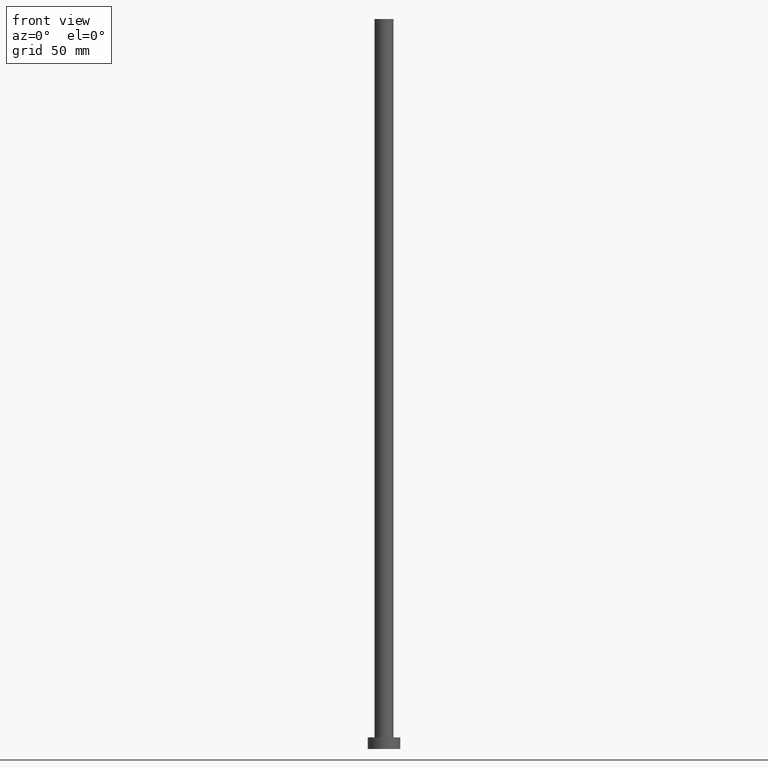
[diagram: clean part render]
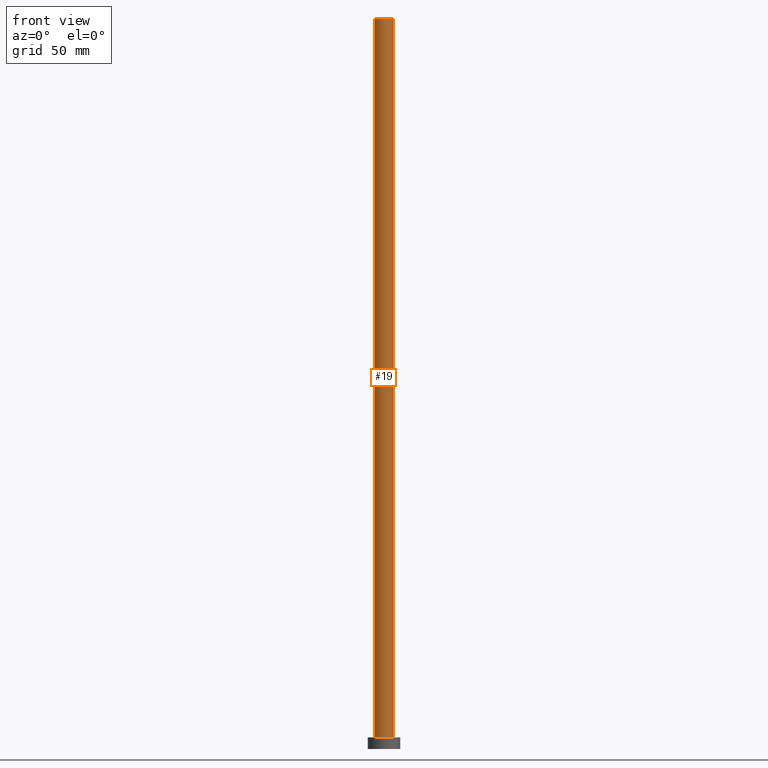
[diagram: same view with one face highlighted and labeled with its STEP entity id]
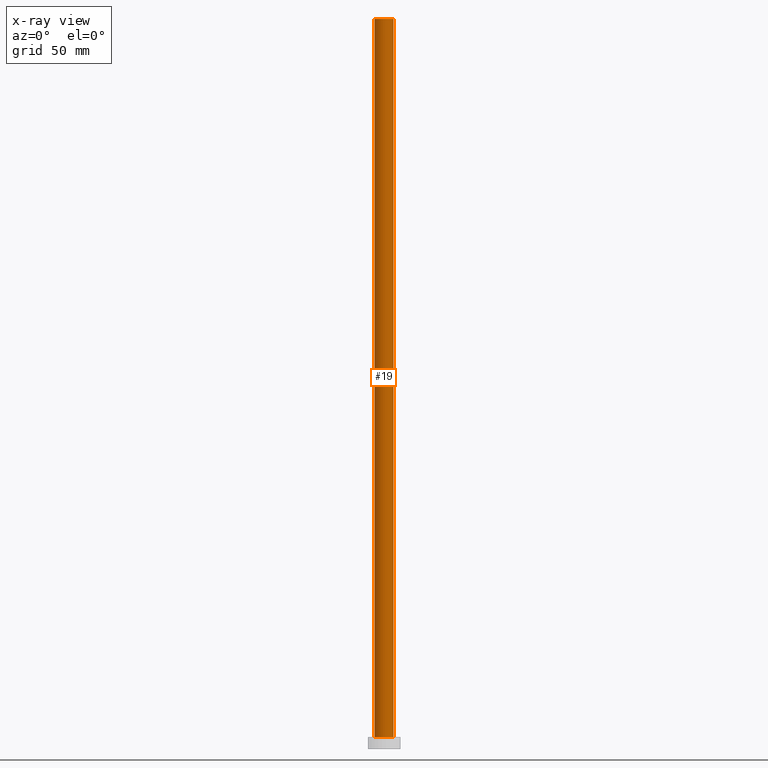
[diagram: x-ray of the same camera — body ghosted, the highlighted face saturated]
A machine part, front view. The second image highlights one B-rep face of the part: STEP entity #19.
The next image is the same camera in x-ray: the body ghosted, the highlighted face saturated — about 0% of this face is hidden behind the body in this view.
In plain terms, the highlighted cylindrical surface (edge-blend (fillet) strip) has radius 4.1 mm, axis along (-0, -0, -1).
Its self-contained STEP definition (entity closure, byte-faithful):
#3 = EDGE_CURVE ( 'NONE', #99, #74, #75, .T. ) ;
#10 = VERTEX_POINT ( 'NONE', #194 ) ;
#14 = FACE_OUTER_BOUND ( 'NONE', #253, .T. ) ;
#19 = ADVANCED_FACE ( 'NONE', ( #14 ), #32, .T. ) ;
#21 = CARTESIAN_POINT ( 'NONE',  ( 4.099999999999999645, 5.021051876504147385E-16, 5.000000000000000000 ) ) ;
#22 = CIRCLE ( 'NONE', #77, 4.099999999999999645 ) ;
#23 = DIRECTION ( 'NONE',  ( 1.000000000000000000, 0.000000000000000000, 0.000000000000000000 ) ) ;
#32 = CYLINDRICAL_SURFACE ( 'NONE', #204, 4.099999999999999645 ) ;
#36 = EDGE_CURVE ( 'NONE', #67, #99, #22, .T. ) ;
#42 = LINE ( 'NONE', #172, #187 ) ;
#46 = AXIS2_PLACEMENT_3D ( 'NONE', #102, #155, #23 ) ;
#57 = DIRECTION ( 'NONE',  ( 1.000000000000000000, 0.000000000000000000, 0.000000000000000000 ) ) ;
#64 = ORIENTED_EDGE ( 'NONE', *, *, #3, .F. ) ;
#67 = VERTEX_POINT ( 'NONE', #135 ) ;
#72 = DIRECTION ( 'NONE',  ( 0.000000000000000000, 0.000000000000000000, 1.000000000000000000 ) ) ;
#74 = VERTEX_POINT ( 'NONE', #21 ) ;
#75 = LINE ( 'NONE', #148, #213 ) ;
#77 = AXIS2_PLACEMENT_3D ( 'NONE', #255, #72, #57 ) ;
#79 = CIRCLE ( 'NONE', #46, 4.099999999999999645 ) ;
#80 = DIRECTION ( 'NONE',  ( -0.000000000000000000, -0.000000000000000000, -1.000000000000000000 ) ) ;
#98 = CARTESIAN_POINT ( 'NONE',  ( 4.099999999999999645, 5.021051876504147385E-16, 315.0000000000000000 ) ) ;
#99 = VERTEX_POINT ( 'NONE', #98 ) ;
#102 = CARTESIAN_POINT ( 'NONE',  ( 0.000000000000000000, 0.000000000000000000, 5.000000000000000000 ) ) ;
#125 = EDGE_CURVE ( 'NONE', #10, #74, #79, .T. ) ;
#134 = EDGE_CURVE ( 'NONE', #67, #10, #42, .T. ) ;
#135 = CARTESIAN_POINT ( 'NONE',  ( -4.099999999999999645, 0.000000000000000000, 315.0000000000000000 ) ) ;
#145 = DIRECTION ( 'NONE',  ( -0.000000000000000000, -0.000000000000000000, -1.000000000000000000 ) ) ;
#148 = CARTESIAN_POINT ( 'NONE',  ( 4.099999999999999645, 5.021051876504147385E-16, 315.0000000000000000 ) ) ;
#155 = DIRECTION ( 'NONE',  ( 0.000000000000000000, 0.000000000000000000, 1.000000000000000000 ) ) ;
#172 = CARTESIAN_POINT ( 'NONE',  ( -4.099999999999999645, 0.000000000000000000, 315.0000000000000000 ) ) ;
#184 = ORIENTED_EDGE ( 'NONE', *, *, #125, .T. ) ;
#187 = VECTOR ( 'NONE', #80, 1000.000000000000000 ) ;
#190 = DIRECTION ( 'NONE',  ( -1.000000000000000000, 0.000000000000000000, 0.000000000000000000 ) ) ;
#192 = ORIENTED_EDGE ( 'NONE', *, *, #36, .F. ) ;
#194 = CARTESIAN_POINT ( 'NONE',  ( -4.099999999999999645, 0.000000000000000000, 5.000000000000000000 ) ) ;
#203 = ORIENTED_EDGE ( 'NONE', *, *, #134, .T. ) ;
#204 = AXIS2_PLACEMENT_3D ( 'NONE', #234, #215, #190 ) ;
#213 = VECTOR ( 'NONE', #145, 1000.000000000000000 ) ;
#215 = DIRECTION ( 'NONE',  ( -0.000000000000000000, -0.000000000000000000, -1.000000000000000000 ) ) ;
#234 = CARTESIAN_POINT ( 'NONE',  ( 0.000000000000000000, 0.000000000000000000, 315.0000000000000000 ) ) ;
#253 = EDGE_LOOP ( 'NONE', ( #64, #192, #203, #184 ) ) ;
#255 = CARTESIAN_POINT ( 'NONE',  ( 0.000000000000000000, 0.000000000000000000, 315.0000000000000000 ) ) ;